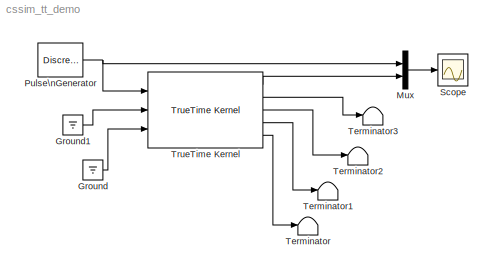
MODEL cssim_tt_demo
KIND model
CONFIG AbsTol = auto
CONFIG FixedStep = auto
CONFIG MaxStep = auto
CONFIG MinStep = auto
CONFIG RelTol = 1e-3
CONFIG Solver = ode45
CONFIG SolverMode = Auto
CONFIG StartTime = 0.0
CONFIG StopTime = 0.5
BLOCK [Ground] Ground
BLOCK [Ground] Ground1
BLOCK [Mux] Mux
  DisplayOption = bar
  Inputs = 2
  Ports = [2, 1]
BLOCK [DiscretePulseGenerator] Pulse\nGenerator
  Amplitude = 10
  Period = 1/10
  PulseType = Time based
  PulseWidth = 50
BLOCK [Scope] Scope
  DataFormat = StructureWithTime
  LimitDataPoints = off
  NumInputPorts = 1
  Ports = [1]
  YMax = 20
  YMin = -10
BLOCK [Terminator] Terminator
BLOCK [Terminator] Terminator1
BLOCK [Terminator] Terminator2
BLOCK [Terminator] Terminator3
BLOCK [Reference] TrueTime Kernel  REF=truetime/TrueTime Kernel  (lib defined in slx_0362a698a4ec)
  Ports = [3, 5]
  SourceBlock = truetime/TrueTime Kernel
  args = 0
  battery = off
  clockdrift = 0
  clockoffset = 0
  sfun = simple_init
LINE Ground1:1 -> TrueTime Kernel:2
LINE Ground:1 -> TrueTime Kernel:3
LINE Mux:1 -> Scope:1
NET Pulse\nGenerator:1 -> Mux:1, TrueTime Kernel:1
LINE TrueTime Kernel:1 -> Mux:2
LINE TrueTime Kernel:2 -> Terminator3:1
LINE TrueTime Kernel:3 -> Terminator2:1
LINE TrueTime Kernel:4 -> Terminator1:1
LINE TrueTime Kernel:5 -> Terminator:1
note: NET lines group one-source signal fan-out (src -> all destinations, sorted); 1:1 wires keep LINE
